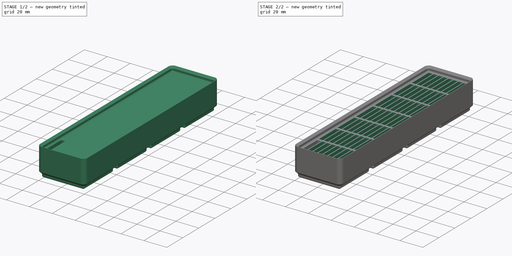
[diagram: build sequence overview — one tinted view per stage of 2, left to right]
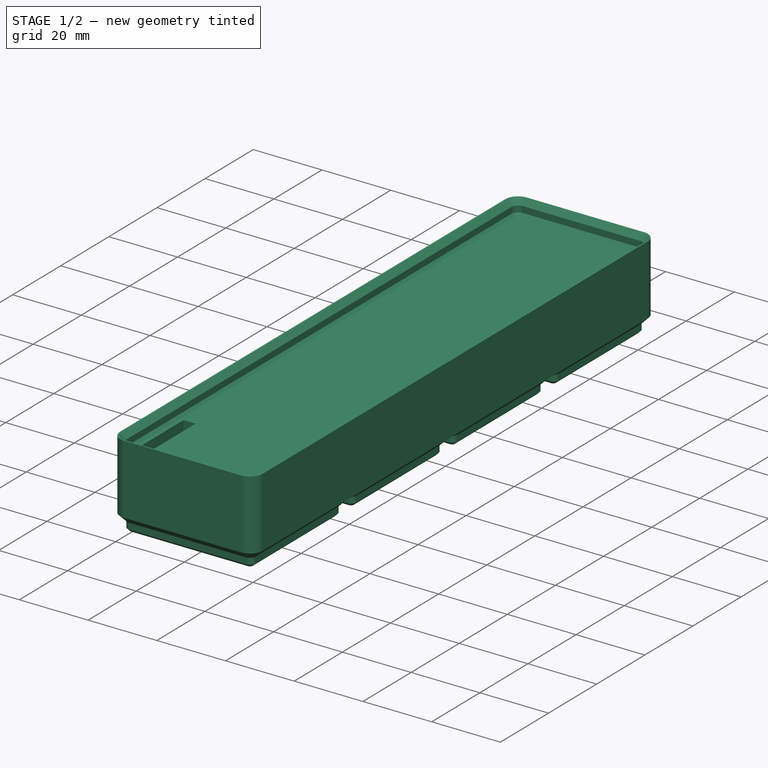
[diagram: stage 1 of 2 — iso view after this stage's code; geometry added in this stage tinted green]
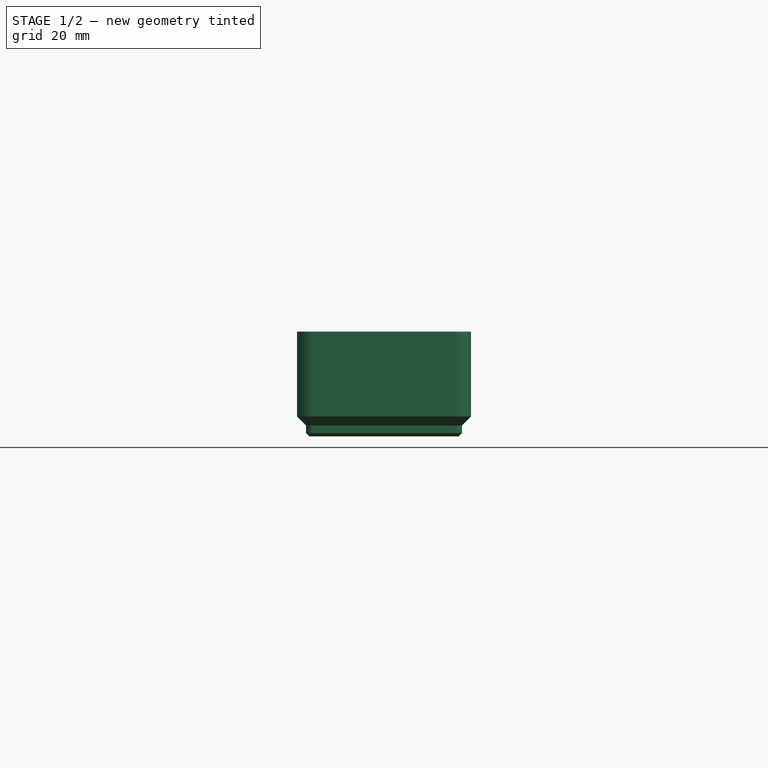
[diagram: stage 1 of 2 — front view after this stage's code; geometry added in this stage tinted green]
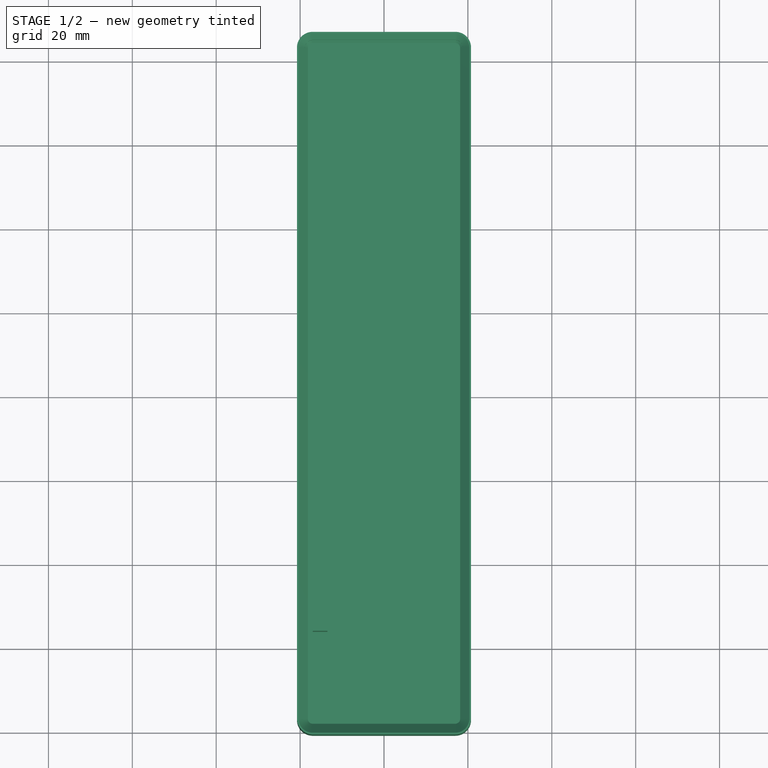
[diagram: stage 1 of 2 — top view after this stage's code; geometry added in this stage tinted green]
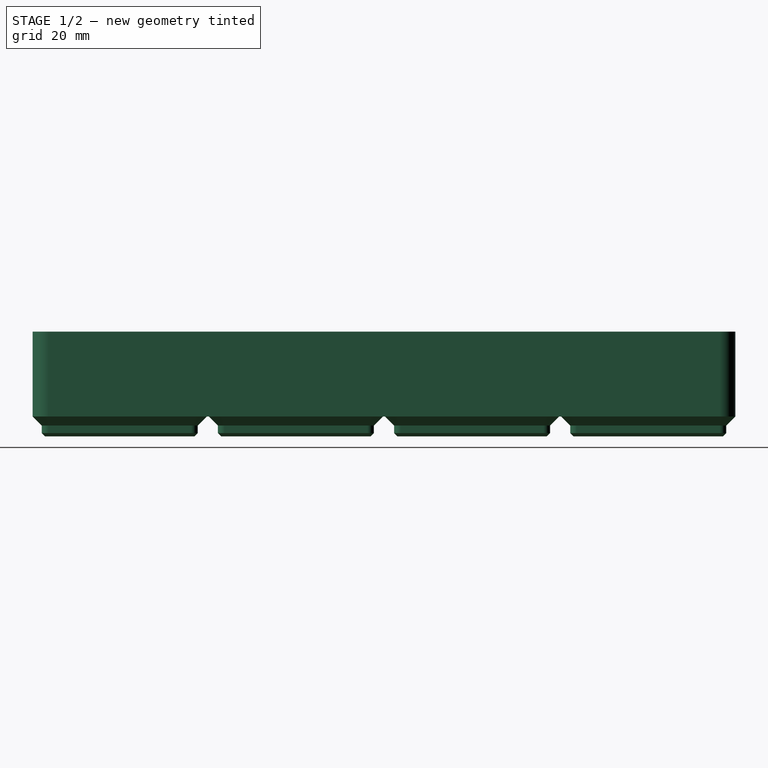
[diagram: stage 1 of 2 — right view after this stage's code; geometry added in this stage tinted green]
FCSTD DOCUMENT  (FreeCAD 1.0R38806 (Git))
Label: CR3023
License: All rights reserved
LicenseURL: http://en.wikipedia.org/wiki/All_rights_reserved
objects: PartDesign::LinearPattern×2, PartDesign::FeaturePython×1, Sketcher::SketchObject×1, PartDesign::Pocket×1, PartDesign::MultiTransform×1, PartDesign::Body×1
note: 14 computed .brp shape members not serialized (recipe doc carries the construction recipe); baked Part::Feature solids carry a one-line shape summary decoded from their .brp

FEATURE [PartDesign::FeaturePython] BinBlank  # WARN: FeaturePython — macro-defined, semantics opaque (R4)
  BaseProfileBottomChamfer = 0.8
  BaseProfileHeight = 4.75
  BaseProfileTopChamfer = 2.15
  BaseProfileVerticalSection = 1.8
  BinBottomRadius = 0.8
  BinOuterRadius = 3.75
  BinUnit = 41.5
  BinVerticalRadius = 1.6
  CustomHeight = 42
  GridSize = 42
  HeightUnitValue = 7
  HeightUnits = 3
  MagnetHoleDepth = 2.4
  MagnetHoleDiameter = 6.5
  MagnetHoleDistanceFromEdge = 8
  MagnetHoles = false
  NonStandardHeight = false
  ScrewHoleDepth = 6
  ScrewHoleDiameter = 3
  ScrewHoles = true
  SequentialBridgingLayerHeight = 0.2
  StackingLip = true
  StackingLipBottomChamfer = 0.7
  StackingLipTopChamfer = 1.5
  StackingLipTopLedge = 0.4
  StackingLipVerticalSection = 1.8
  Suppressed = false
  Tolerance = 0.25
  TotalHeight = 21
  WallThickness = 1
  version = 0.6.0
  xGridUnits = 1
  xTotalWidth = 41.5
  yGridUnits = 4
  yTotalWidth = 167.5
FEATURE [Sketcher::SketchObject] Sketch
  ArcFitTolerance = 1e-06
  AttachmentSupport = -> [BinBlank]
  ExternalGeometry = -> [BinBlank]
  FullyConstrained = true
  MakeInternals = false
  MapMode = 5
  sketch-geometry (4):
    g0: LineSegment StartX=-17 StartY=4 StartZ=0 EndX=-17 EndY=-17 EndZ=0
    g1: LineSegment StartX=-17 StartY=-17 StartZ=0 EndX=-13.5 EndY=-17 EndZ=0
    g2: LineSegment StartX=-13.5 StartY=-17 StartZ=0 EndX=-13.5 EndY=4 EndZ=0
    g3: LineSegment StartX=-13.5 StartY=4 StartZ=0 EndX=-17 EndY=4 EndZ=0
  constraints (12):
    c: Coincident(g0,g1)
    c: Coincident(g1,g2)
    c: Coincident(g2,g3)
    c: Coincident(g3,g0)
    c: Vertical(g0)
    c: Vertical(g2)
    c: Horizontal(g1)
    c: Horizontal(g3)
    c: DistanceX(g3,g3) = 3.5
    c: DistanceY(g0,g0) = 21
    c: Vertical(g0,g-3)
    c: Horizontal(g-4,g0)
FEATURE [PartDesign::Pocket] Pocket
  BaseFeature = -> BinBlank
  Direction = (0,0,-1)
  Length = 13
  Length2 = 5
  Profile = -> Sketch
  ReferenceAxis = -> Sketch [N_Axis]
  Suppressed = false
  Type = 0
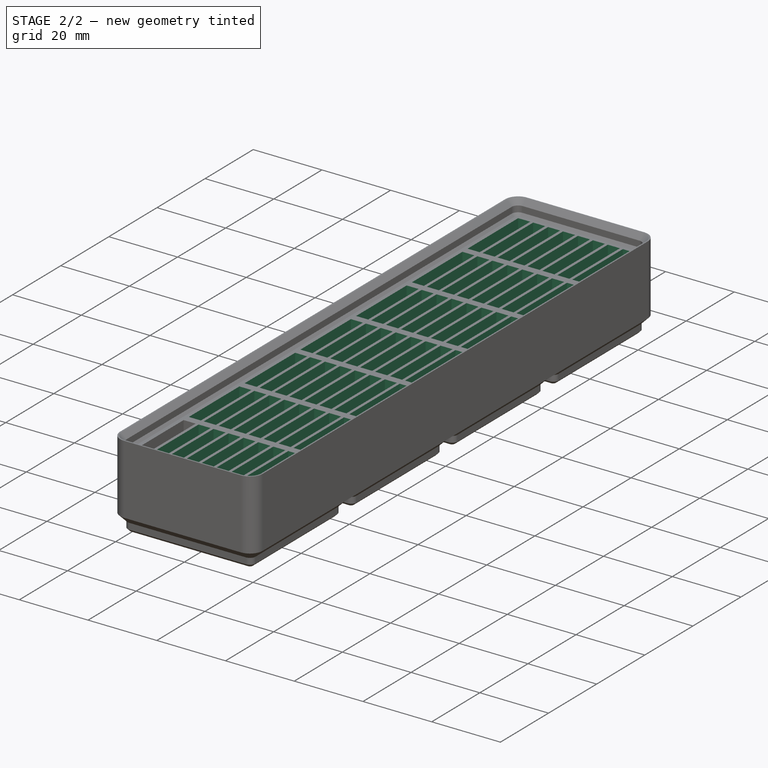
[diagram: stage 2 of 2 — iso view after this stage's code; geometry added in this stage tinted green]
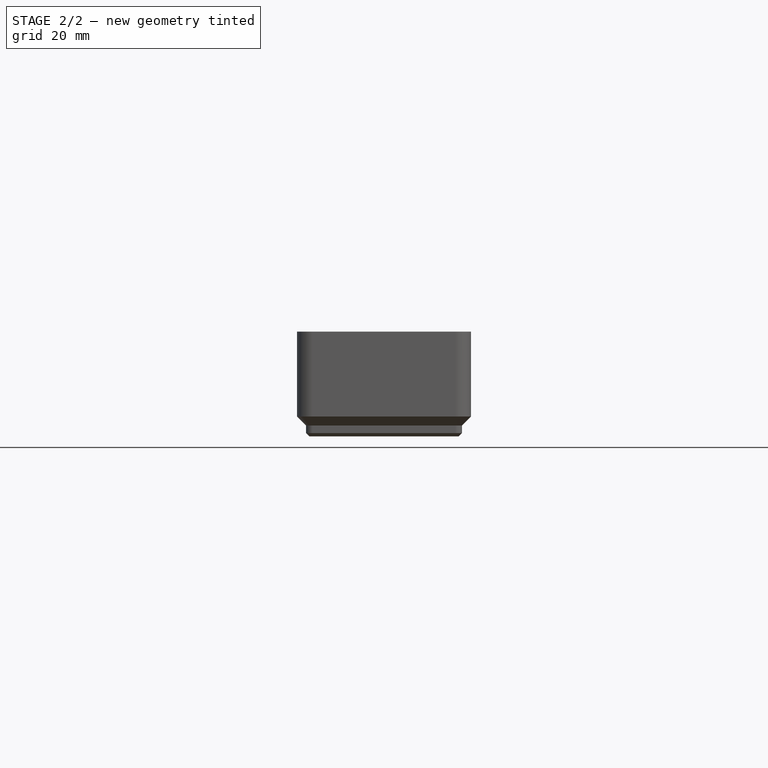
[diagram: stage 2 of 2 — front view after this stage's code; geometry added in this stage tinted green]
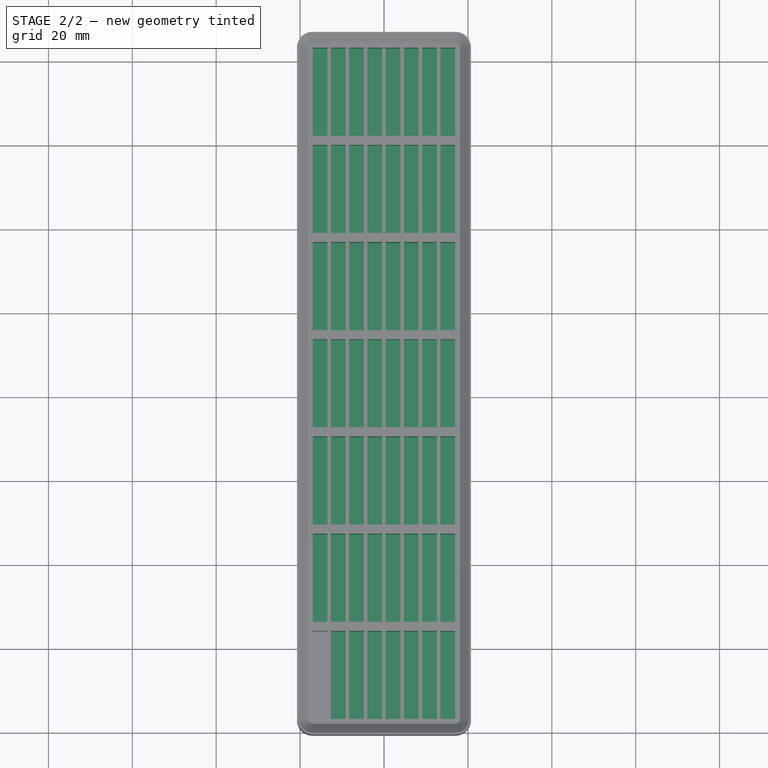
[diagram: stage 2 of 2 — top view after this stage's code; geometry added in this stage tinted green]
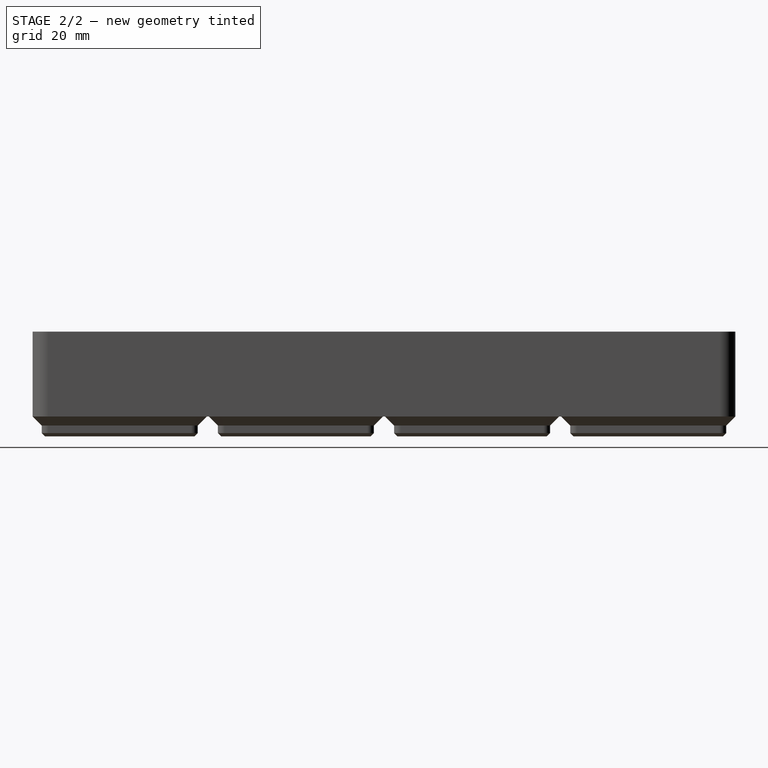
[diagram: stage 2 of 2 — right view after this stage's code; geometry added in this stage tinted green]
FEATURE [PartDesign::LinearPattern] LinearPattern
  Direction = -> Y_Axis
  Length = 139.05
  Mode = 1
  Occurrences = 7
  Offset = 23.175
  Suppressed = false
  TransformMode = 0
FEATURE [PartDesign::LinearPattern] LinearPattern001
  Direction = -> X_Axis
  Length = 30.45
  Mode = 1
  Occurrences = 8
  Offset = 4.35
  Suppressed = false
  TransformMode = 0
FEATURE [PartDesign::MultiTransform] MultiTransform
  BaseFeature = -> Pocket
  Originals = -> [Pocket]
  Suppressed = false
  TransformMode = 0
  Transformations = -> [LinearPattern,LinearPattern001]
FEATURE [PartDesign::Body] Body
  AllowCompound = false
  Group = -> [BinBlank,Sketch,Pocket,MultiTransform,LinearPattern,LinearPattern001]
  Origin = -> Origin
  Tip = -> MultiTransform
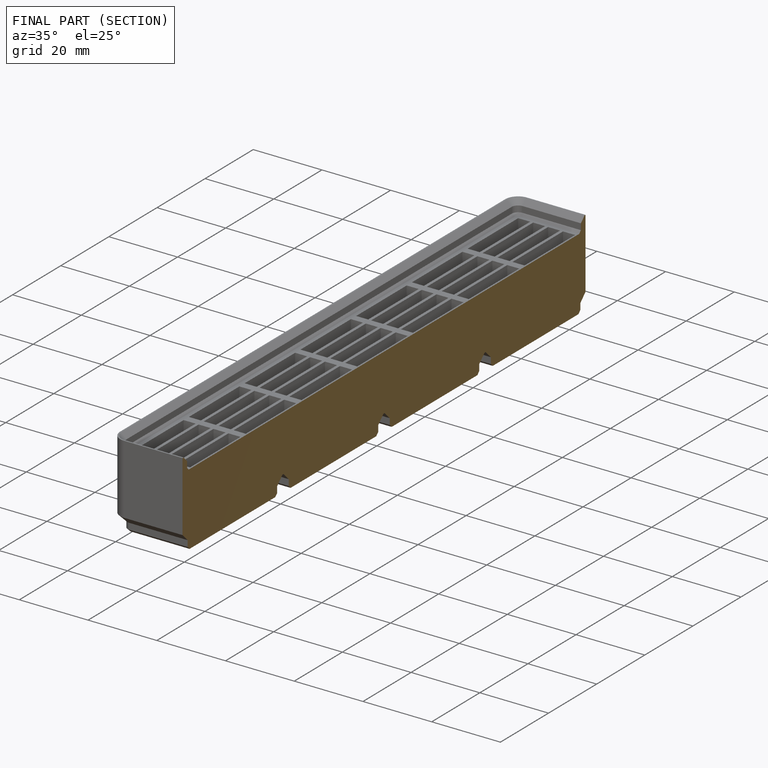
[diagram: finished part — half-section view (interior)]
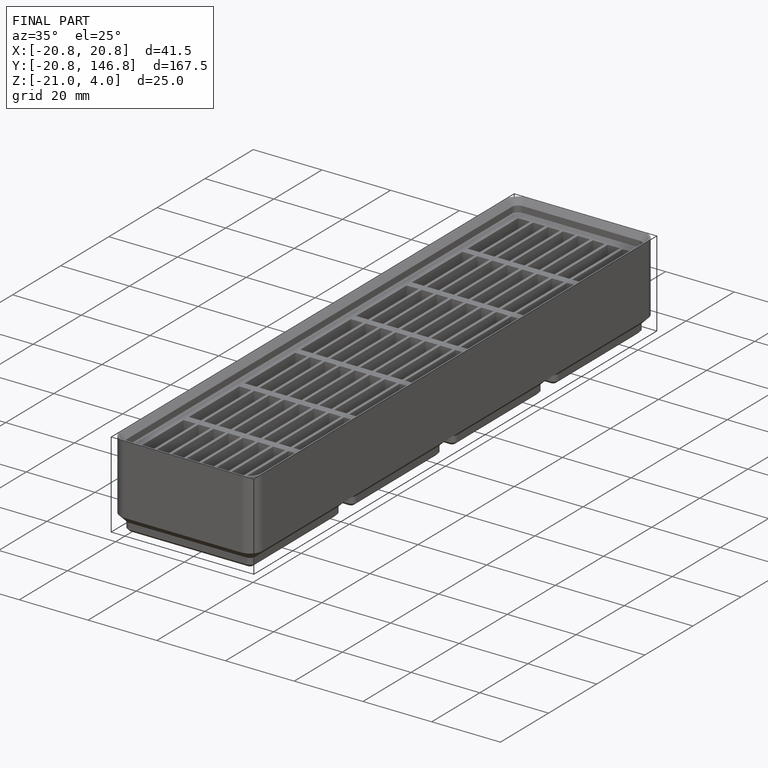
[diagram: finished part — iso view with bounding-box wireframe]
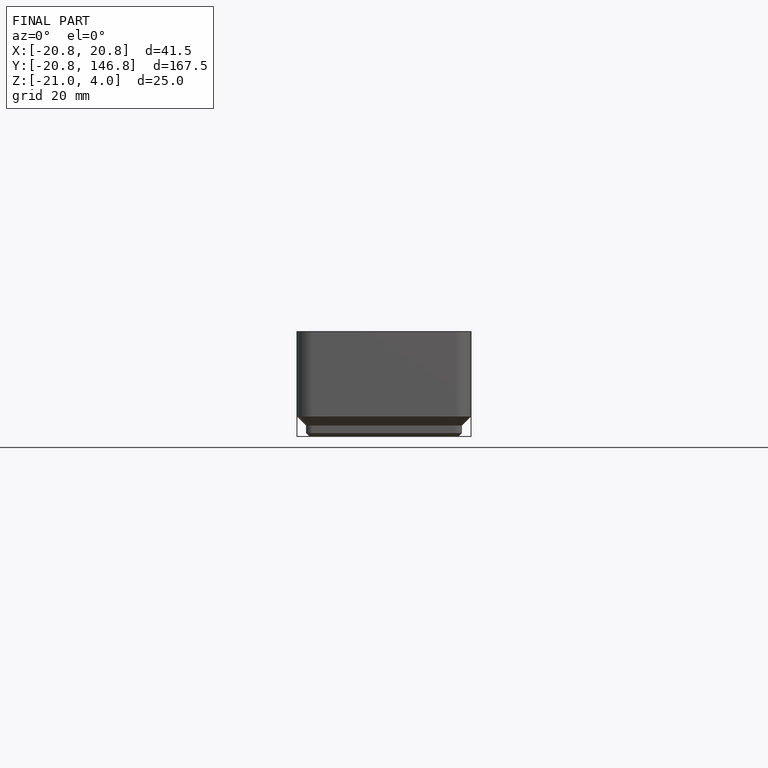
[diagram: finished part — front view with bounding-box wireframe]
